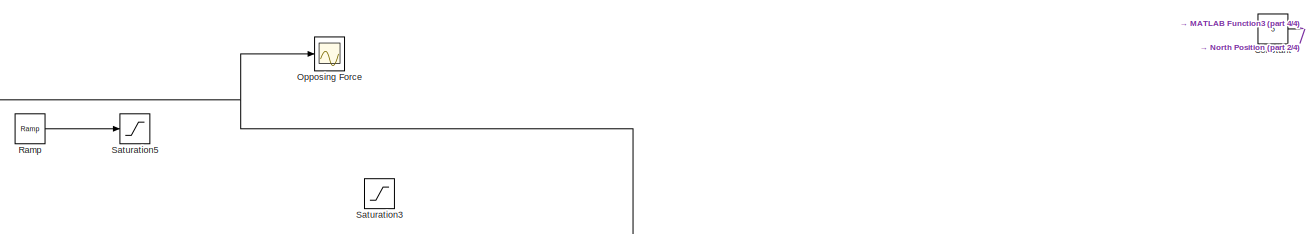
[diagram: root canvas - part 1/4, top center region]
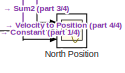
[diagram: root canvas - part 2/4, top right region]
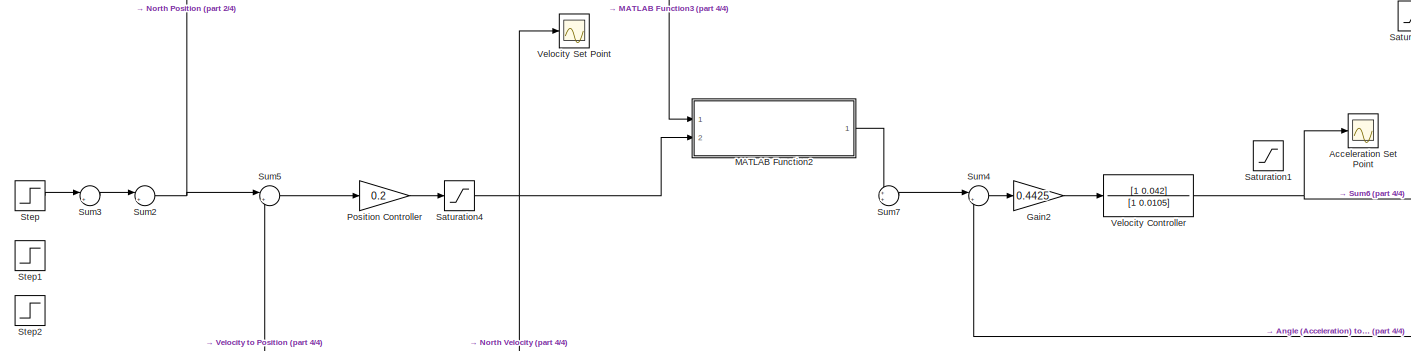
[diagram: root canvas - part 3/4, middle left region]
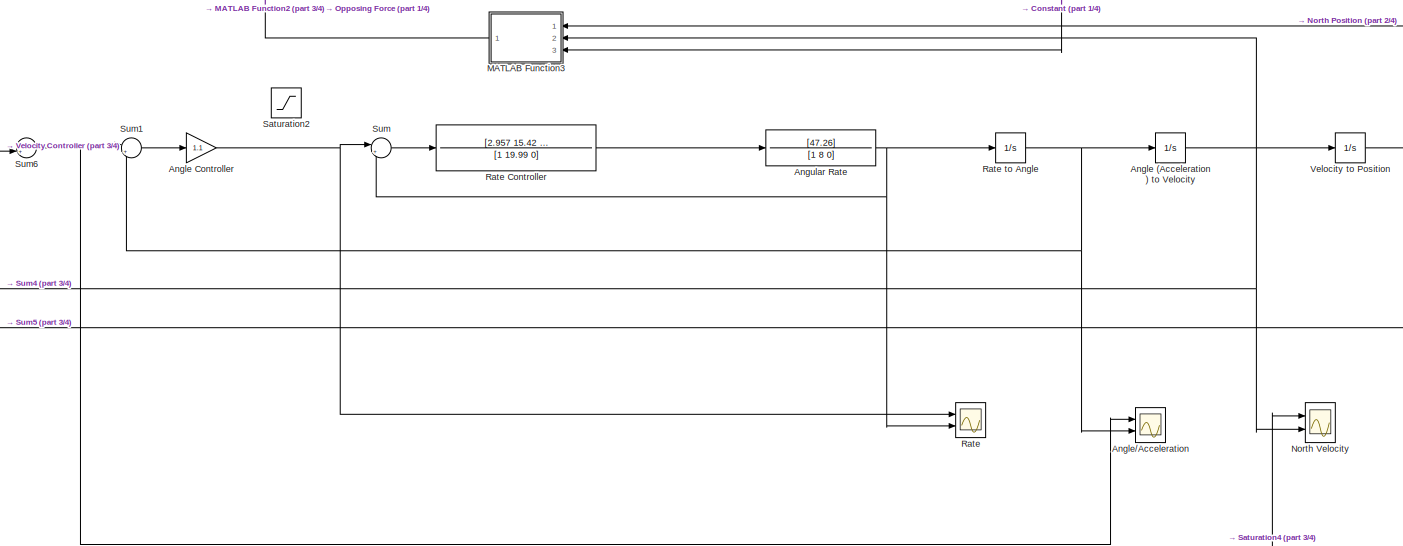
[diagram: root canvas - part 4/4, middle right region]
MODEL slx_1e4023fa75a7
KIND model
CONFIG AbsTol = auto
CONFIG FixedStep = auto
CONFIG MaxStep = auto
CONFIG MinStep = auto
CONFIG RelTol = 1e-3
CONFIG SampleTimeConstraint = Unconstrained
CONFIG Solver = ode45
CONFIG SolverMode = SingleTasking
CONFIG SolverName = ode45
CONFIG StartTime = 0.0
CONFIG StopTime = 200
BLOCK [Scope] Acceleration Set Point
  DataFormat = StructureWithTime
  Decimation = 1
  Grid = on
  LimitDataPoints = off
  MaxDataPoints = 5000
  NumInputPorts = 1
  Ports = [1]
  SampleInput = off
  SampleTime = -1
  SaveName = ScopeData2
  SaveToWorkspace = off
  ShowLegends = off
  TickLabels = OneTimeTick
  TimeRange = auto
  YMax = 2.98497
  YMin = -0.33166
  ZoomMode = on
BLOCK [Integrator] Angle (Acceleration) to Velocity
  Ports = [1, 1]
BLOCK [Gain] Angle Controller
  Gain = 1.1
  OutDataTypeStr = Inherit: Inherit via internal rule
  ParamDataTypeStr = Inherit: Inherit via internal rule
  SaturateOnIntegerOverflow = off
BLOCK [Scope] Angle//Acceleration
  DataFormat = StructureWithTime
  Decimation = 1
  Grid = on
  LimitDataPoints = off
  MaxDataPoints = 5000
  NumInputPorts = 2
  Ports = [2]
  SampleInput = off
  SampleTime = -1
  SaveName = ScopeData2
  SaveToWorkspace = off
  ShowLegends = off
  TickLabels = OneTimeTick
  TimeRange = auto
  YMax = 2.67489~5
  YMin = -4.32095~-5
  ZoomMode = on
BLOCK [TransferFcn] Angular Rate
  Denominator = [1 8 0]
  Numerator = [47.26]
BLOCK [Constant] Constant
  Value = 5
BLOCK [Gain] Gain2
  Gain = 0.4425
  OutDataTypeStr = Inherit: Inherit via internal rule
  ParamDataTypeStr = Inherit: Inherit via internal rule
  SaturateOnIntegerOverflow = off
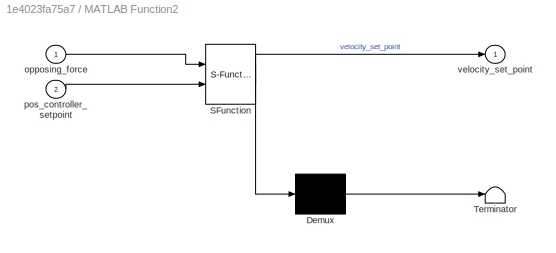
BLOCK [SubSystem] MATLAB Function2
  ErrorFcn = Stateflow.Translate.translate
  PermitHierarchicalResolution = ParametersOnly
  Ports = [2, 1]
  RequestExecContextInheritance = off
  SFBlockType = MATLAB Function
  TreatAsAtomicUnit = on
  Variant = off
BLOCK [Demux] MATLAB Function2/ Demux 
  Outputs = 1
  Ports = [1, 1]
BLOCK [S-Function] MATLAB Function2/ SFunction 
  EnableBusSupport = on
  FunctionName = sf_sfun
  PortCounts = [2 2]
  Ports = [2, 2]
  SFunctionDeploymentMode = off
  Tag = Stateflow S-Function SimplePhoenixModel_2015 3
BLOCK [Terminator] MATLAB Function2/ Terminator 
BLOCK [Inport] MATLAB Function2/opposing_force
  IconDisplay = Port number
BLOCK [Inport] MATLAB Function2/pos_controller_setpoint
  IconDisplay = Port number
  Port = 2
BLOCK [Outport] MATLAB Function2/velocity_set_point
  IconDisplay = Port number
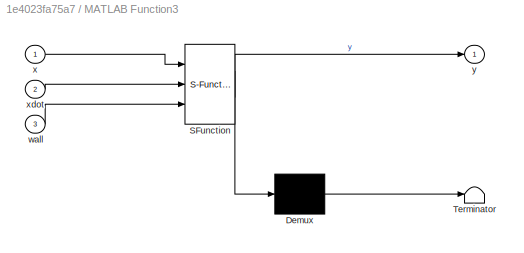
BLOCK [SubSystem] MATLAB Function3
  ErrorFcn = Stateflow.Translate.translate
  PermitHierarchicalResolution = ParametersOnly
  Ports = [3, 1]
  RequestExecContextInheritance = off
  SFBlockType = MATLAB Function
  TreatAsAtomicUnit = on
  Variant = off
BLOCK [Demux] MATLAB Function3/ Demux 
  Outputs = 1
  Ports = [1, 1]
BLOCK [S-Function] MATLAB Function3/ SFunction 
  EnableBusSupport = on
  FunctionName = sf_sfun
  PortCounts = [3 2]
  Ports = [3, 2]
  SFunctionDeploymentMode = off
  Tag = Stateflow S-Function SimplePhoenixModel_2015 4
BLOCK [Terminator] MATLAB Function3/ Terminator 
BLOCK [Inport] MATLAB Function3/wall
  IconDisplay = Port number
  Port = 3
BLOCK [Inport] MATLAB Function3/x
  IconDisplay = Port number
BLOCK [Inport] MATLAB Function3/xdot
  IconDisplay = Port number
  Port = 2
BLOCK [Outport] MATLAB Function3/y
  IconDisplay = Port number
BLOCK [Scope] North Position
  DataFormat = StructureWithTime
  Decimation = 1
  Grid = on
  LimitDataPoints = off
  MaxDataPoints = 5000
  NumInputPorts = 3
  Ports = [3]
  SampleInput = off
  SampleTime = -1
  SaveName = ScopeData
  SaveToWorkspace = off
  ShowLegends = off
  TickLabels = OneTimeTick
  TimeRange = auto
  YMax = 11.25~5~5
  YMin = -1.25~-5~-5
  ZoomMode = on
BLOCK [Scope] North Velocity
  DataFormat = StructureWithTime
  Decimation = 1
  Grid = on
  LimitDataPoints = off
  MaxDataPoints = 5000
  NumInputPorts = 2
  Ports = [2]
  SampleInput = off
  SampleTime = -1
  SaveName = ScopeData3
  SaveToWorkspace = off
  ShowLegends = off
  TickLabels = OneTimeTick
  TimeRange = auto
  YMax = 2.38917~5
  YMin = -1.50257~-5
  ZoomMode = on
BLOCK [Scope] Opposing Force
  DataFormat = StructureWithTime
  Decimation = 1
  Grid = on
  LimitDataPoints = off
  MaxDataPoints = 5000
  NumInputPorts = 1
  Ports = [1]
  SampleInput = off
  SampleTime = -1
  SaveName = ScopeData1
  SaveToWorkspace = off
  ShowLegends = off
  TickLabels = OneTimeTick
  TimeRange = auto
  YMax = 4.75568
  YMin = -3.25944
  ZoomMode = on
BLOCK [Gain] Position Controller
  Gain = 0.2
  OutDataTypeStr = Inherit: Inherit via internal rule
  ParamDataTypeStr = Inherit: Inherit via internal rule
  SaturateOnIntegerOverflow = off
BLOCK [Reference] Ramp  REF=simulink/Sources/Ramp
  Ports = [0, 1]
  SourceBlock = simulink/Sources/Ramp
  SourceType = Ramp
  VectorParams1D = on
  X0 = 0
  slope = -1
  start = 0
BLOCK [Scope] Rate
  DataFormat = StructureWithTime
  Decimation = 1
  Grid = on
  LimitDataPoints = off
  MaxDataPoints = 5000
  NumInputPorts = 2
  Ports = [2]
  SampleInput = off
  SampleTime = -1
  SaveName = ScopeData1
  SaveToWorkspace = off
  ShowLegends = off
  TickLabels = OneTimeTick
  TimeRange = auto
  YMax = 4.08672~5
  YMin = -5.04118~-5
  ZoomMode = on
BLOCK [TransferFcn] Rate Controller
  Denominator = [1 19.99 0]
  Numerator = [2.957 15.42 12.97]
BLOCK [Integrator] Rate to Angle
  Ports = [1, 1]
BLOCK [Saturate] Saturation1
  InputPortMap = u0
  LowerLimit = -2
  Ports = [1, 1]
  UpperLimit = 2
BLOCK [Saturate] Saturation2
  InputPortMap = u0
  Ports = [1, 1]
BLOCK [Saturate] Saturation3
  InputPortMap = u0
  LowerLimit = -3
  Ports = [1, 1]
  UpperLimit = 3
BLOCK [Saturate] Saturation4
  InputPortMap = u0
  LowerLimit = -2
  Ports = [1, 1]
  UpperLimit = 2
BLOCK [Saturate] Saturation5
  InputPortMap = u0
  LowerLimit = -1
  Ports = [1, 1]
  UpperLimit = 0
BLOCK [Step] Step
  After = 10
  SampleTime = 0
BLOCK [Step] Step1
  After = 6
  SampleTime = 0
  Time = 20
BLOCK [Step] Step2
  After = -8
  SampleTime = 0
  Time = 50
BLOCK [Sum] Sum
  IconShape = round
  InputSameDT = off
  Inputs = |+-
  OutDataTypeStr = Inherit: Inherit via internal rule
  Ports = [2, 1]
  SaturateOnIntegerOverflow = off
BLOCK [Sum] Sum1
  IconShape = round
  InputSameDT = off
  Inputs = |+-
  OutDataTypeStr = Inherit: Inherit via internal rule
  Ports = [2, 1]
  SaturateOnIntegerOverflow = off
BLOCK [Sum] Sum2
  IconShape = round
  InputSameDT = off
  Inputs = |++
  OutDataTypeStr = Inherit: Inherit via internal rule
  Ports = [2, 1]
  SaturateOnIntegerOverflow = off
BLOCK [Sum] Sum3
  IconShape = round
  InputSameDT = off
  Inputs = |++
  OutDataTypeStr = Inherit: Inherit via internal rule
  Ports = [2, 1]
  SaturateOnIntegerOverflow = off
BLOCK [Sum] Sum4
  IconShape = round
  InputSameDT = off
  Inputs = |+-
  OutDataTypeStr = Inherit: Inherit via internal rule
  Ports = [2, 1]
  SaturateOnIntegerOverflow = off
BLOCK [Sum] Sum5
  IconShape = round
  InputSameDT = off
  Inputs = |+-
  OutDataTypeStr = Inherit: Inherit via internal rule
  Ports = [2, 1]
  SaturateOnIntegerOverflow = off
BLOCK [Sum] Sum6
  IconShape = round
  InputSameDT = off
  Inputs = ++|
  OutDataTypeStr = Inherit: Inherit via internal rule
  Ports = [2, 1]
  SaturateOnIntegerOverflow = off
BLOCK [Sum] Sum7
  IconShape = round
  InputSameDT = off
  Inputs = ++|
  OutDataTypeStr = Inherit: Inherit via internal rule
  Ports = [2, 1]
  SaturateOnIntegerOverflow = off
BLOCK [TransferFcn] Velocity Controller
  Denominator = [1 0.0105]
  Numerator = [1 0.042]
BLOCK [Scope] Velocity Set Point
  DataFormat = StructureWithTime
  Decimation = 1
  Grid = on
  LimitDataPoints = off
  MaxDataPoints = 5000
  NumInputPorts = 1
  Ports = [1]
  SampleInput = off
  SampleTime = -1
  SaveName = ScopeData3
  SaveToWorkspace = off
  ShowLegends = off
  TickLabels = OneTimeTick
  TimeRange = auto
  YMax = 2.2558
  YMin = -0.35284
  ZoomMode = on
BLOCK [Integrator] Velocity to Position
  Ports = [1, 1]
NET Angle (Acceleration) to Velocity:1 -> MATLAB Function3:2, North Velocity:2, Sum4:2, Velocity to Position:1
NET Angle Controller:1 -> Rate:1, Sum:1
NET Angular Rate:1 -> Rate to Angle:1, Rate:2, Sum:2
NET Constant:1 -> MATLAB Function3:3, North Position:3
LINE Gain2:1 -> Velocity Controller:1
LINE MATLAB Function2:1 -> Sum7:1
NET MATLAB Function3:1 -> MATLAB Function2:1, Opposing Force:1
LINE Position Controller:1 -> Saturation4:1
LINE Ramp:1 -> Saturation5:1
LINE Rate Controller:1 -> Angular Rate:1
NET Rate to Angle:1 -> Angle (Acceleration) to Velocity:1, Angle//Acceleration:2, Sum1:2
NET Saturation4:1 -> MATLAB Function2:2, North Velocity:1, Velocity Set Point:1
LINE Step:1 -> Sum3:1
LINE Sum1:1 -> Angle Controller:1
NET Sum2:1 -> North Position:1, Sum5:1
LINE Sum3:1 -> Sum2:1
LINE Sum4:1 -> Gain2:1
LINE Sum5:1 -> Position Controller:1
NET Sum6:1 -> Angle//Acceleration:1, Sum1:1
LINE Sum7:1 -> Sum4:1
LINE Sum:1 -> Rate Controller:1
NET Velocity Controller:1 -> Acceleration Set Point:1, Sum6:2
NET Velocity to Position:1 -> MATLAB Function3:1, North Position:2, Sum5:2
note: NET lines group one-source signal fan-out (src -> all destinations, sorted); 1:1 wires keep LINE
CHART MATLAB Function2 states=1 transitions=1
  STATE_LABEL 'eML_blk_kernel()'
  STATE_LABEL 'SCRIPT:\nfunction velocity_set_point = fcn(opposing_force, pos_controller_setpoint)\n\n%if the opposing force is bigger than some hysteris around 0 and the\n%opposing force and velocity setpoint are not in the same direction then\n%set to opposing force\n\n% if abs(opposing_force) >= 0.001\n%     velocity_set_point = opposing_force;\n% else\n%     velocity_set_point = pos_controller_setpoint;\n% end\n\nif abs(...<+370ch>'
CHART MATLAB Function3 states=1 transitions=1
  STATE_LABEL 'eML_blk_kernel()'
  STATE_LABEL 'SCRIPT:\nfunction y = fcn(x,xdot,wall)\n\n%Wall at 5m\nsensor_max_distance = 2;\n\ndistance_to_wall = wall-x;\n\n% % Coefficinets used in summing option\n% ks = 1;\n% kd = 5;\n\n% % Coefficients used in modified min max option\nks = 0.5;\nkd = 3.5;\n\n\n%If we are further away from the wall than the sensor can read, set sensor\n%reading to 0 (disable spring) and xdot to zero (disable damping)\n%Otherwise calculate t...<+565ch>'
